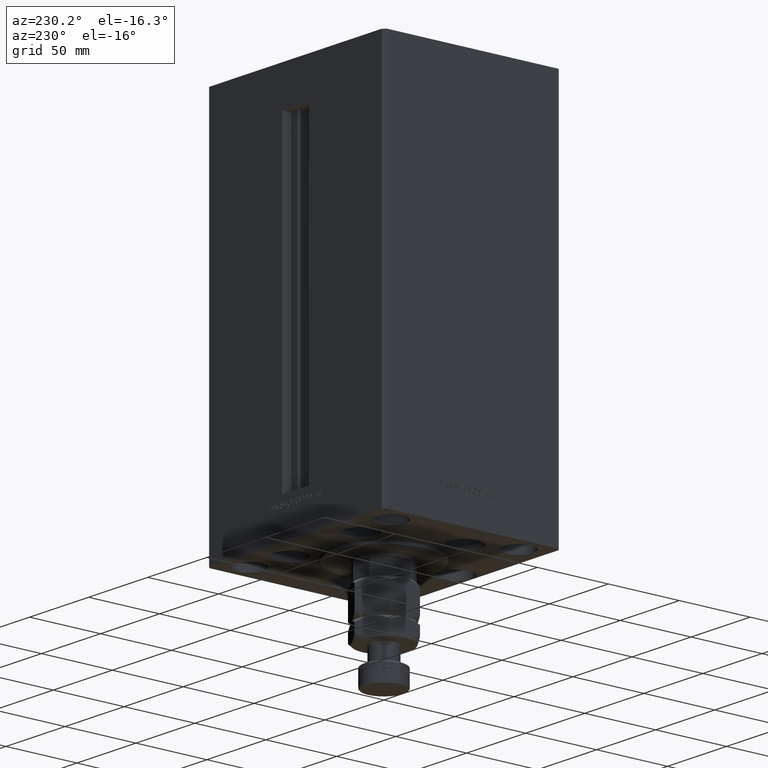
[diagram: clean part render]
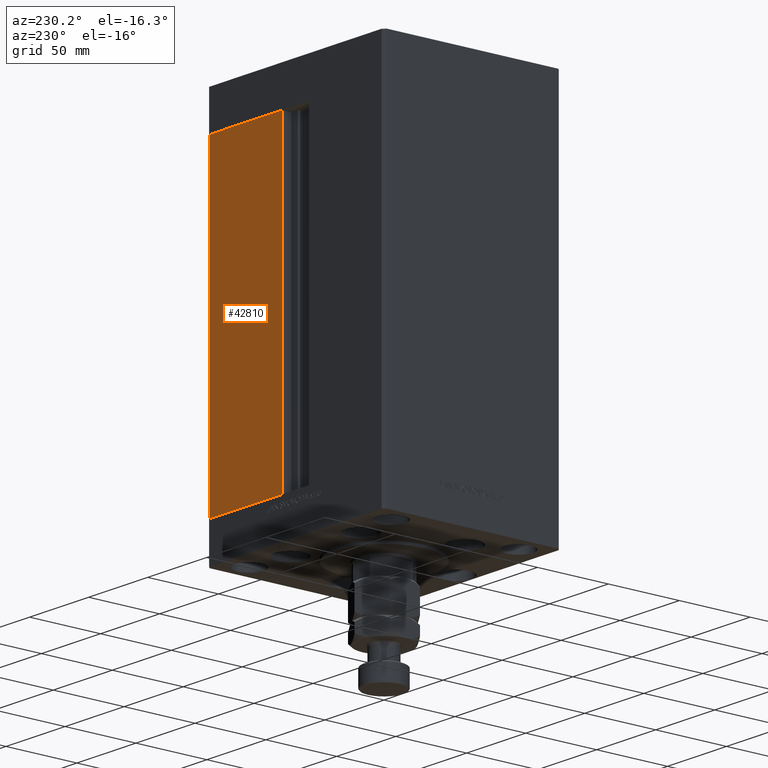
[diagram: same view with one face highlighted and labeled with its STEP entity id]
A machine part, auxiliary view. The second image highlights one B-rep face of the part: STEP entity #42810.
In plain terms, the highlighted planar face has unit normal (-0, -1, 0).
Its self-contained STEP definition (entity closure, byte-faithful):
#869 = CARTESIAN_POINT ( 'NONE',  ( -11.25000000000000178, 62.49999999999999289, 217.0000000000000000 ) ) ;
#908 = DIRECTION ( 'NONE',  ( -1.123707514802790025E-16, -1.000000000000000000, 0.000000000000000000 ) ) ;
#942 = VECTOR ( 'NONE', #47931, 1000.000000000000000 ) ;
#966 = VECTOR ( 'NONE', #32611, 1000.000000000000000 ) ;
#8022 = ORIENTED_EDGE ( 'NONE', *, *, #21085, .T. ) ;
#10284 = ORIENTED_EDGE ( 'NONE', *, *, #21131, .T. ) ;
#13073 = LINE ( 'NONE', #44329, #942 ) ;
#13992 = DIRECTION ( 'NONE',  ( -0.000000000000000000, -0.000000000000000000, -1.000000000000000000 ) ) ;
#14656 = VERTEX_POINT ( 'NONE', #37820 ) ;
#15310 = ORIENTED_EDGE ( 'NONE', *, *, #44740, .T. ) ;
#16054 = CARTESIAN_POINT ( 'NONE',  ( 11.25000000000000178, 62.49999999999999289, 0.000000000000000000 ) ) ;
#18822 = VERTEX_POINT ( 'NONE', #46965 ) ;
#19608 = CARTESIAN_POINT ( 'NONE',  ( -11.25000000000000178, 62.49999999999999289, 217.0000000000000000 ) ) ;
#19837 = DIRECTION ( 'NONE',  ( -0.000000000000000000, -0.000000000000000000, 1.000000000000000000 ) ) ;
#20371 = FACE_OUTER_BOUND ( 'NONE', #42211, .T. ) ;
#21085 = EDGE_CURVE ( 'NONE', #21794, #14656, #27745, .T. ) ;
#21131 = EDGE_CURVE ( 'NONE', #14656, #28467, #24939, .T. ) ;
#21794 = VERTEX_POINT ( 'NONE', #16054 ) ;
#24227 = DIRECTION ( 'NONE',  ( 1.000000000000000000, -1.123707514802790025E-16, 0.000000000000000000 ) ) ;
#24939 = LINE ( 'NONE', #869, #966 ) ;
#27745 = LINE ( 'NONE', #47755, #30402 ) ;
#28308 = PLANE ( 'NONE',  #36032 ) ;
#28467 = VERTEX_POINT ( 'NONE', #32730 ) ;
#29882 = CARTESIAN_POINT ( 'NONE',  ( 73.00000000000001421, 62.50000000000000000, 217.0000000000000000 ) ) ;
#30402 = VECTOR ( 'NONE', #19837, 1000.000000000000000 ) ;
#32611 = DIRECTION ( 'NONE',  ( 1.000000000000000000, 0.000000000000000000, 0.000000000000000000 ) ) ;
#32730 = CARTESIAN_POINT ( 'NONE',  ( 73.00000000000001421, 62.50000000000000000, 217.0000000000000000 ) ) ;
#36032 = AXIS2_PLACEMENT_3D ( 'NONE', #19608, #908, #24227 ) ;
#36556 = LINE ( 'NONE', #29882, #36798 ) ;
#36798 = VECTOR ( 'NONE', #13992, 1000.000000000000000 ) ;
#37820 = CARTESIAN_POINT ( 'NONE',  ( 11.24999999999999467, 62.49999999999999289, 217.0000000000000000 ) ) ;
#39741 = ORIENTED_EDGE ( 'NONE', *, *, #41605, .T. ) ;
#41605 = EDGE_CURVE ( 'NONE', #28467, #18822, #36556, .T. ) ;
#42211 = EDGE_LOOP ( 'NONE', ( #15310, #8022, #10284, #39741 ) ) ;
#42810 = ADVANCED_FACE ( 'NONE', ( #20371 ), #28308, .F. ) ;
#44329 = CARTESIAN_POINT ( 'NONE',  ( -11.25000000000000178, 62.49999999999999289, 0.000000000000000000 ) ) ;
#44740 = EDGE_CURVE ( 'NONE', #18822, #21794, #13073, .T. ) ;
#46965 = CARTESIAN_POINT ( 'NONE',  ( 73.00000000000001421, 62.50000000000000000, 0.000000000000000000 ) ) ;
#47755 = CARTESIAN_POINT ( 'NONE',  ( 11.25000000000000178, 62.49999999999999289, 0.000000000000000000 ) ) ;
#47931 = DIRECTION ( 'NONE',  ( -1.000000000000000000, 1.123707514802790025E-16, 0.000000000000000000 ) ) ;